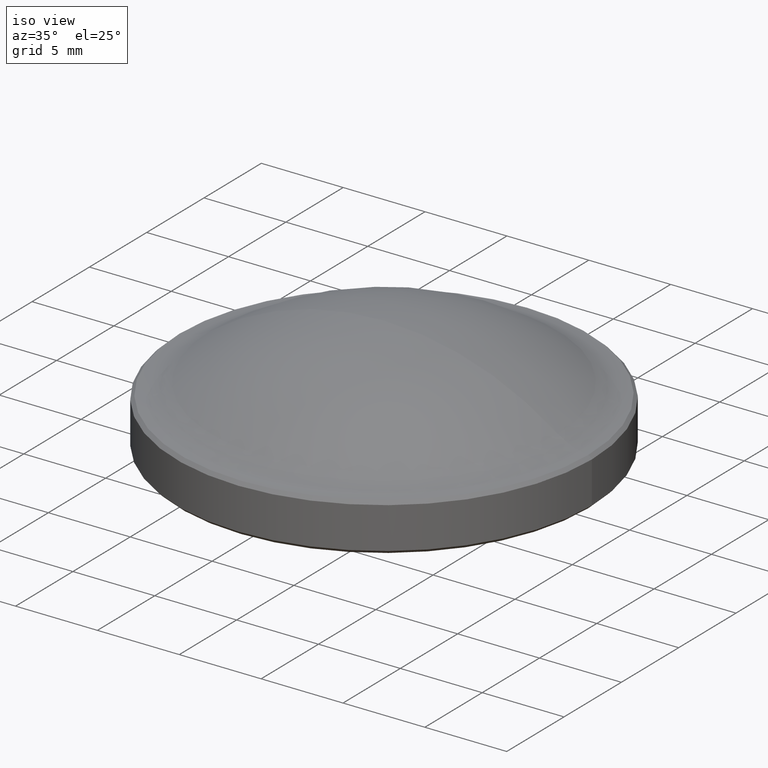
[diagram: clean part render]
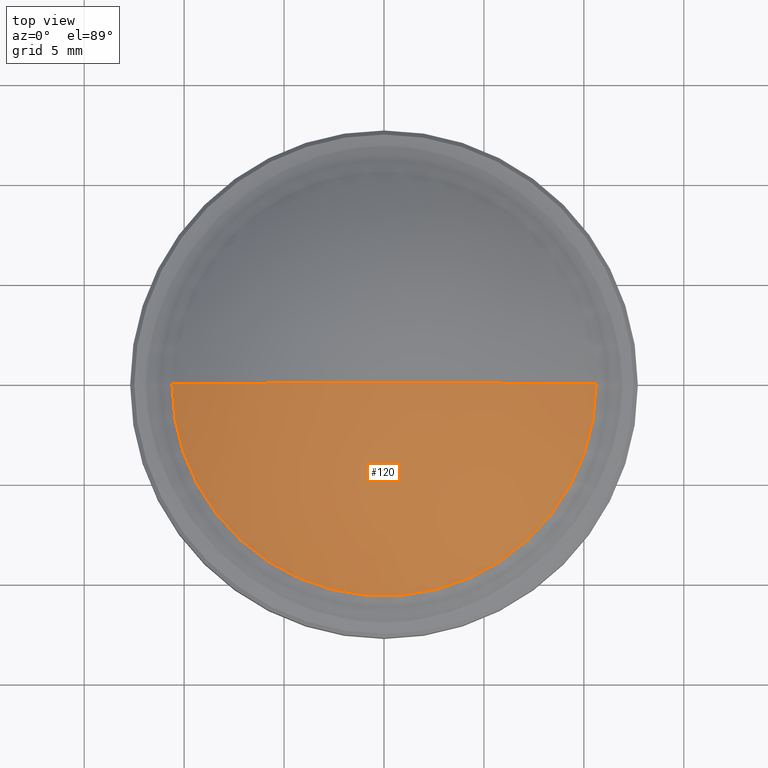
[diagram: tour spotlight — one face highlighted and labeled with its STEP entity id]
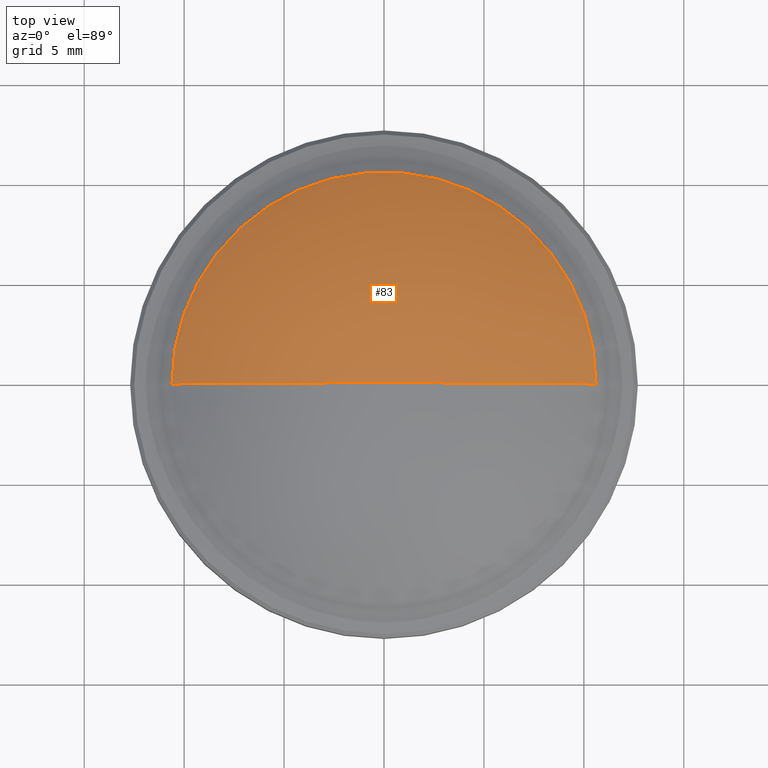
[diagram: tour spotlight — one face highlighted and labeled with its STEP entity id]
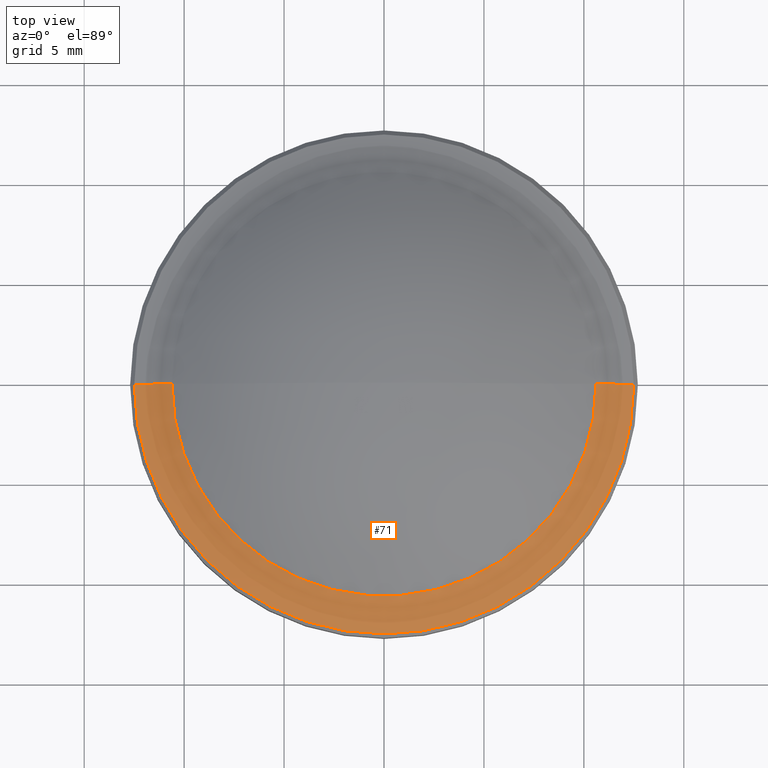
[diagram: tour spotlight — one face highlighted and labeled with its STEP entity id]
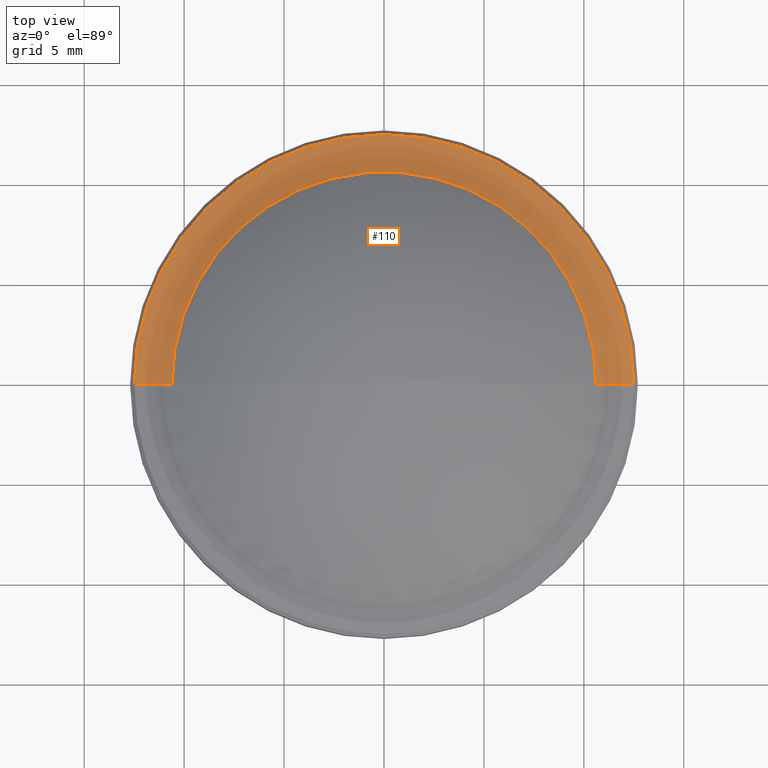
[diagram: tour spotlight — one face highlighted and labeled with its STEP entity id]
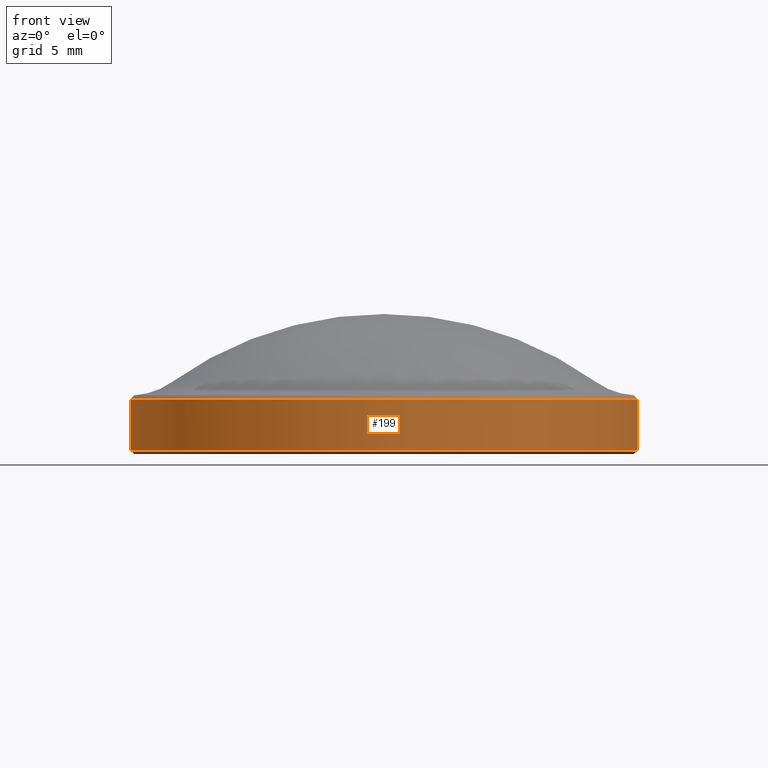
[diagram: tour spotlight — one face highlighted and labeled with its STEP entity id]
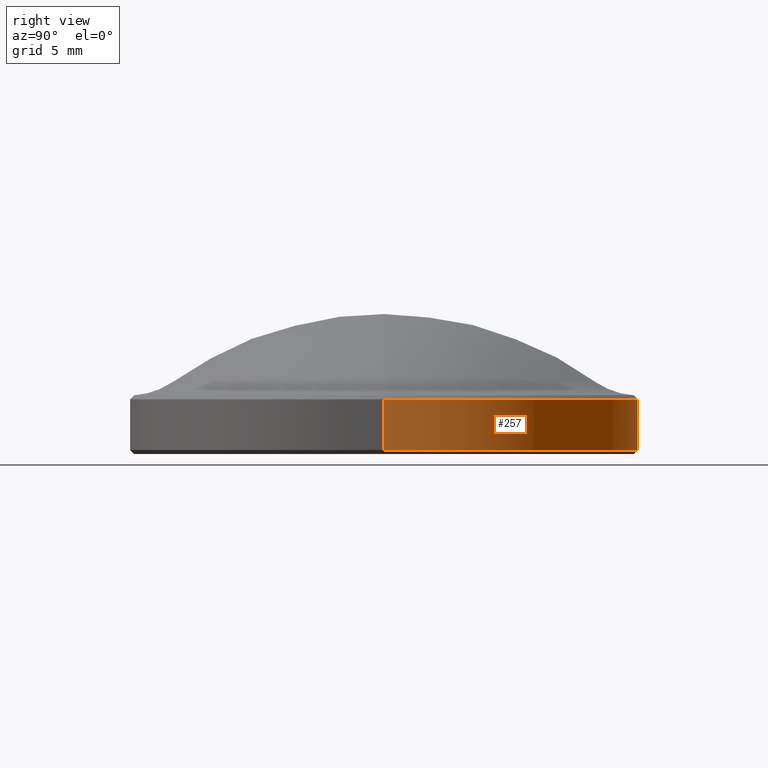
[diagram: tour spotlight — one face highlighted and labeled with its STEP entity id]
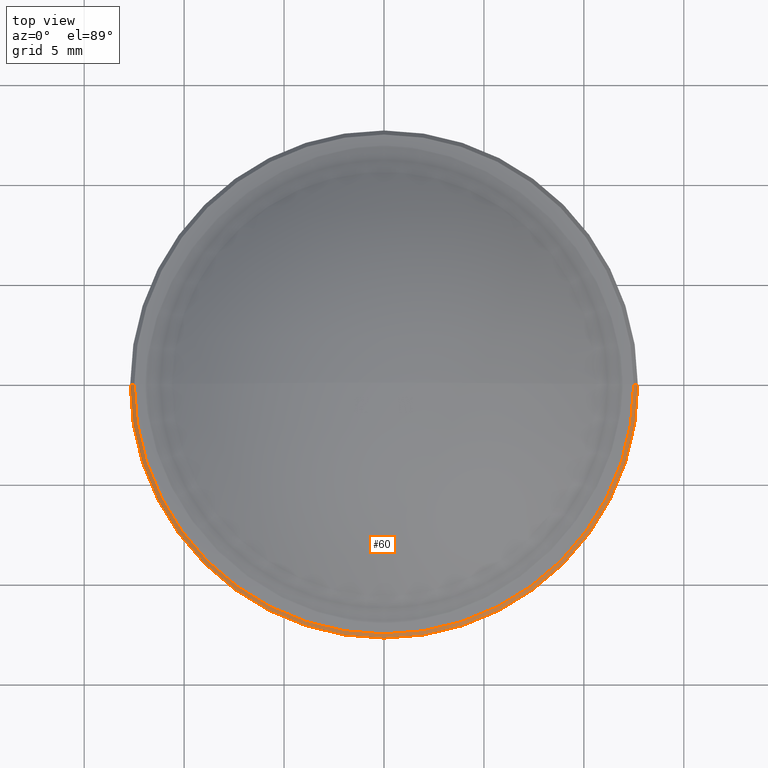
[diagram: tour spotlight — one face highlighted and labeled with its STEP entity id]
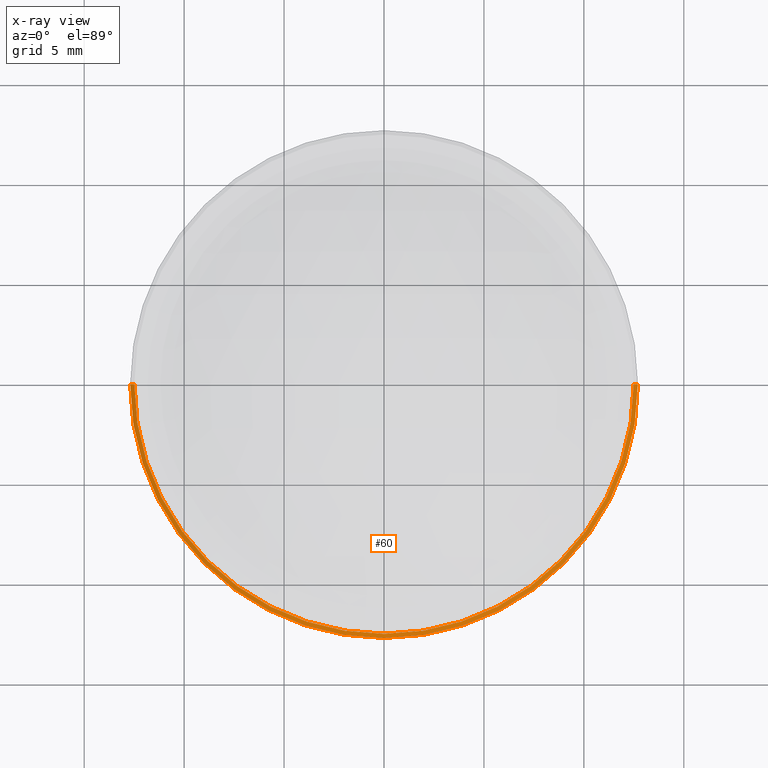
[diagram: x-ray of the same camera — body ghosted, this tour face saturated]
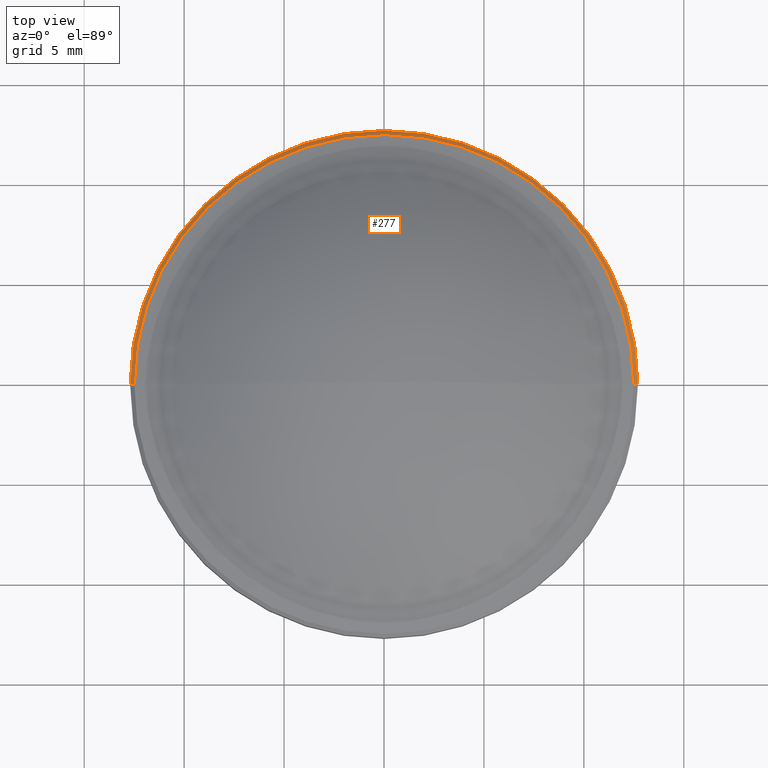
[diagram: tour spotlight — one face highlighted and labeled with its STEP entity id]
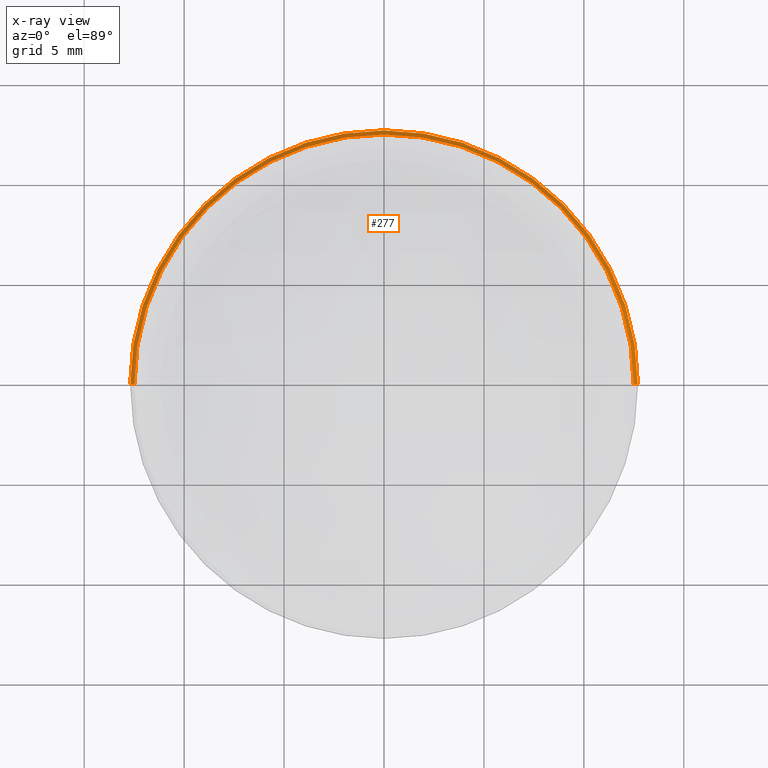
[diagram: x-ray of the same camera — body ghosted, this tour face saturated]
A machine part: a face-by-face anatomy tour. The part has 11 B-rep faces; the first image is the clean iso view, then the 8 largest visible faces are spotlighted one at a time (largest first), each with its STEP entity span.

Face 1 — top view, entity #120. In plain terms, the highlighted spherical surface has radius 18.252 mm.
Definition (entity closure, byte-faithful):
#15 = CARTESIAN_POINT ( 'NONE',  ( 0.000000000000000000, 0.000000000000000000, -11.25199999999999889 ) ) ;
#19 = VERTEX_POINT ( 'NONE', #275 ) ;
#21 = CARTESIAN_POINT ( 'NONE',  ( 8.206617439655612360E-17, 0.000000000000000000, 3.600121168435616248 ) ) ;
#24 = DIRECTION ( 'NONE',  ( 0.000000000000000000, 0.000000000000000000, -1.000000000000000000 ) ) ;
#36 = AXIS2_PLACEMENT_3D ( 'NONE', #259, #170, #212 ) ;
#40 = FACE_OUTER_BOUND ( 'NONE', #217, .T. ) ;
#58 = CIRCLE ( 'NONE', #245, 18.25199999999999889 ) ;
#87 = ORIENTED_EDGE ( 'NONE', *, *, #310, .F. ) ;
#94 = SPHERICAL_SURFACE ( 'NONE', #36, 18.25199999999999889 ) ;
#96 = DIRECTION ( 'NONE',  ( -1.000000000000000000, -1.224646799147353207E-16, 0.000000000000000000 ) ) ;
#106 = AXIS2_PLACEMENT_3D ( 'NONE', #21, #202, #180 ) ;
#120 = ADVANCED_FACE ( 'NONE', ( #40 ), #94, .T. ) ;
#170 = DIRECTION ( 'NONE',  ( 0.000000000000000000, 1.000000000000000000, -0.000000000000000000 ) ) ;
#175 = EDGE_CURVE ( 'NONE', #19, #178, #228, .T. ) ;
#178 = VERTEX_POINT ( 'NONE', #194 ) ;
#180 = DIRECTION ( 'NONE',  ( -1.000000000000000000, 0.000000000000000000, 1.226362234330445841E-16 ) ) ;
#184 = AXIS2_PLACEMENT_3D ( 'NONE', #15, #191, #96 ) ;
#189 = ORIENTED_EDGE ( 'NONE', *, *, #249, .T. ) ;
#191 = DIRECTION ( 'NONE',  ( -1.224646799147353207E-16, 1.000000000000000000, 1.499759782661857608E-32 ) ) ;
#194 = CARTESIAN_POINT ( 'NONE',  ( 10.60895851618369967, 1.414654521538122764E-15, 3.600121168435614916 ) ) ;
#202 = DIRECTION ( 'NONE',  ( -1.224646799147353207E-16, -0.000000000000000000, -1.000000000000000000 ) ) ;
#212 = DIRECTION ( 'NONE',  ( -1.000000000000000000, 0.000000000000000000, 9.504292548634709852E-17 ) ) ;
#215 = DIRECTION ( 'NONE',  ( 0.000000000000000000, -1.000000000000000000, 0.000000000000000000 ) ) ;
#217 = EDGE_LOOP ( 'NONE', ( #243, #189, #87 ) ) ;
#228 = CIRCLE ( 'NONE', #184, 18.25199999999999889 ) ;
#233 = CIRCLE ( 'NONE', #106, 10.60895851618369967 ) ;
#243 = ORIENTED_EDGE ( 'NONE', *, *, #175, .F. ) ;
#245 = AXIS2_PLACEMENT_3D ( 'NONE', #263, #215, #24 ) ;
#249 = EDGE_CURVE ( 'NONE', #19, #251, #58, .T. ) ;
#251 = VERTEX_POINT ( 'NONE', #318 ) ;
#259 = CARTESIAN_POINT ( 'NONE',  ( 0.000000000000000000, 0.000000000000000000, -11.25199999999999889 ) ) ;
#263 = CARTESIAN_POINT ( 'NONE',  ( 0.000000000000000000, 0.000000000000000000, -11.25199999999999889 ) ) ;
#275 = CARTESIAN_POINT ( 'NONE',  ( 1.117612668901874404E-15, 0.000000000000000000, 6.999999999999999112 ) ) ;
#310 = EDGE_CURVE ( 'NONE', #178, #251, #233, .T. ) ;
#318 = CARTESIAN_POINT ( 'NONE',  ( -10.60895851618369967, 0.000000000000000000, 3.600121168435617580 ) ) ;

Face 2 — top view, entity #83. In plain terms, the highlighted spherical surface has radius 18.252 mm.
Definition (entity closure, byte-faithful):
#15 = CARTESIAN_POINT ( 'NONE',  ( 0.000000000000000000, 0.000000000000000000, -11.25199999999999889 ) ) ;
#19 = VERTEX_POINT ( 'NONE', #275 ) ;
#23 = DIRECTION ( 'NONE',  ( -1.224646799147353207E-16, -0.000000000000000000, -1.000000000000000000 ) ) ;
#24 = DIRECTION ( 'NONE',  ( 0.000000000000000000, 0.000000000000000000, -1.000000000000000000 ) ) ;
#42 = SPHERICAL_SURFACE ( 'NONE', #85, 18.25199999999999889 ) ;
#44 = DIRECTION ( 'NONE',  ( -1.000000000000000000, 0.000000000000000000, 9.504292548634709852E-17 ) ) ;
#58 = CIRCLE ( 'NONE', #245, 18.25199999999999889 ) ;
#67 = CARTESIAN_POINT ( 'NONE',  ( 0.000000000000000000, 0.000000000000000000, -11.25199999999999889 ) ) ;
#78 = DIRECTION ( 'NONE',  ( -1.000000000000000000, 0.000000000000000000, 1.226362234330445841E-16 ) ) ;
#83 = ADVANCED_FACE ( 'NONE', ( #125 ), #42, .T. ) ;
#85 = AXIS2_PLACEMENT_3D ( 'NONE', #67, #151, #44 ) ;
#96 = DIRECTION ( 'NONE',  ( -1.000000000000000000, -1.224646799147353207E-16, 0.000000000000000000 ) ) ;
#117 = AXIS2_PLACEMENT_3D ( 'NONE', #155, #23, #78 ) ;
#125 = FACE_OUTER_BOUND ( 'NONE', #309, .T. ) ;
#145 = ORIENTED_EDGE ( 'NONE', *, *, #268, .F. ) ;
#151 = DIRECTION ( 'NONE',  ( 0.000000000000000000, 1.000000000000000000, -0.000000000000000000 ) ) ;
#155 = CARTESIAN_POINT ( 'NONE',  ( 8.206617439655612360E-17, 0.000000000000000000, 3.600121168435616248 ) ) ;
#175 = EDGE_CURVE ( 'NONE', #19, #178, #228, .T. ) ;
#178 = VERTEX_POINT ( 'NONE', #194 ) ;
#181 = ORIENTED_EDGE ( 'NONE', *, *, #249, .F. ) ;
#184 = AXIS2_PLACEMENT_3D ( 'NONE', #15, #191, #96 ) ;
#191 = DIRECTION ( 'NONE',  ( -1.224646799147353207E-16, 1.000000000000000000, 1.499759782661857608E-32 ) ) ;
#194 = CARTESIAN_POINT ( 'NONE',  ( 10.60895851618369967, 1.414654521538122764E-15, 3.600121168435614916 ) ) ;
#200 = ORIENTED_EDGE ( 'NONE', *, *, #175, .T. ) ;
#215 = DIRECTION ( 'NONE',  ( 0.000000000000000000, -1.000000000000000000, 0.000000000000000000 ) ) ;
#228 = CIRCLE ( 'NONE', #184, 18.25199999999999889 ) ;
#245 = AXIS2_PLACEMENT_3D ( 'NONE', #263, #215, #24 ) ;
#249 = EDGE_CURVE ( 'NONE', #19, #251, #58, .T. ) ;
#251 = VERTEX_POINT ( 'NONE', #318 ) ;
#263 = CARTESIAN_POINT ( 'NONE',  ( 0.000000000000000000, 0.000000000000000000, -11.25199999999999889 ) ) ;
#268 = EDGE_CURVE ( 'NONE', #251, #178, #315, .T. ) ;
#275 = CARTESIAN_POINT ( 'NONE',  ( 1.117612668901874404E-15, 0.000000000000000000, 6.999999999999999112 ) ) ;
#309 = EDGE_LOOP ( 'NONE', ( #181, #200, #145 ) ) ;
#315 = CIRCLE ( 'NONE', #117, 10.60895851618369967 ) ;
#318 = CARTESIAN_POINT ( 'NONE',  ( -10.60895851618369967, 0.000000000000000000, 3.600121168435617580 ) ) ;

Face 3 — top view, entity #71. In plain terms, the highlighted toroidal blend (fillet) surface has major radius 12.7 mm and minor (blend) radius 3.5975 mm.
Definition (entity closure, byte-faithful):
#21 = CARTESIAN_POINT ( 'NONE',  ( 8.206617439655612360E-17, 0.000000000000000000, 3.600121168435616248 ) ) ;
#27 = CIRCLE ( 'NONE', #59, 12.49410307713541712 ) ;
#29 = CARTESIAN_POINT ( 'NONE',  ( 12.69999999999999929, 1.555301434917138433E-15, 6.527496314496314511 ) ) ;
#31 = EDGE_CURVE ( 'NONE', #204, #178, #264, .T. ) ;
#38 = ORIENTED_EDGE ( 'NONE', *, *, #190, .F. ) ;
#41 = AXIS2_PLACEMENT_3D ( 'NONE', #29, #161, #299 ) ;
#59 = AXIS2_PLACEMENT_3D ( 'NONE', #302, #306, #213 ) ;
#71 = ADVANCED_FACE ( 'NONE', ( #172 ), #216, .F. ) ;
#84 = EDGE_CURVE ( 'NONE', #291, #204, #27, .T. ) ;
#86 = ORIENTED_EDGE ( 'NONE', *, *, #84, .T. ) ;
#95 = AXIS2_PLACEMENT_3D ( 'NONE', #195, #281, #235 ) ;
#106 = AXIS2_PLACEMENT_3D ( 'NONE', #21, #202, #180 ) ;
#119 = DIRECTION ( 'NONE',  ( -1.000000000000000000, 0.000000000000000000, 1.224646799147353207E-16 ) ) ;
#142 = AXIS2_PLACEMENT_3D ( 'NONE', #149, #255, #119 ) ;
#149 = CARTESIAN_POINT ( 'NONE',  ( 0.000000000000000000, 0.000000000000000000, 6.527496314496316288 ) ) ;
#161 = DIRECTION ( 'NONE',  ( -1.224646799147353207E-16, 1.000000000000000000, 1.499759782661857608E-32 ) ) ;
#164 = ORIENTED_EDGE ( 'NONE', *, *, #31, .T. ) ;
#172 = FACE_OUTER_BOUND ( 'NONE', #183, .T. ) ;
#178 = VERTEX_POINT ( 'NONE', #194 ) ;
#180 = DIRECTION ( 'NONE',  ( -1.000000000000000000, 0.000000000000000000, 1.226362234330445841E-16 ) ) ;
#183 = EDGE_LOOP ( 'NONE', ( #86, #164, #284, #38 ) ) ;
#190 = EDGE_CURVE ( 'NONE', #291, #251, #256, .T. ) ;
#194 = CARTESIAN_POINT ( 'NONE',  ( 10.60895851618369967, 1.414654521538122764E-15, 3.600121168435614916 ) ) ;
#195 = CARTESIAN_POINT ( 'NONE',  ( -12.69999999999999929, 0.000000000000000000, 6.527496314496318064 ) ) ;
#202 = DIRECTION ( 'NONE',  ( -1.224646799147353207E-16, -0.000000000000000000, -1.000000000000000000 ) ) ;
#204 = VERTEX_POINT ( 'NONE', #258 ) ;
#213 = DIRECTION ( 'NONE',  ( 1.000000000000000000, 0.000000000000000000, -1.388433779733579211E-16 ) ) ;
#216 = TOROIDAL_SURFACE ( 'NONE', #142, 12.69999999999999929, 3.597496314496318792 ) ;
#233 = CIRCLE ( 'NONE', #106, 10.60895851618369967 ) ;
#235 = DIRECTION ( 'NONE',  ( 0.000000000000000000, 0.000000000000000000, -1.000000000000000000 ) ) ;
#244 = CARTESIAN_POINT ( 'NONE',  ( -12.49410307714051882, 0.000000000000000000, 2.935896922863991954 ) ) ;
#251 = VERTEX_POINT ( 'NONE', #318 ) ;
#255 = DIRECTION ( 'NONE',  ( -1.224646799147353207E-16, -0.000000000000000000, -1.000000000000000000 ) ) ;
#256 = CIRCLE ( 'NONE', #95, 3.597496314496318792 ) ;
#258 = CARTESIAN_POINT ( 'NONE',  ( 12.49410307714051882, 1.530086334163723081E-15, 2.935896922863988845 ) ) ;
#264 = CIRCLE ( 'NONE', #41, 3.597496314496318348 ) ;
#281 = DIRECTION ( 'NONE',  ( 0.000000000000000000, -1.000000000000000000, 0.000000000000000000 ) ) ;
#284 = ORIENTED_EDGE ( 'NONE', *, *, #310, .T. ) ;
#291 = VERTEX_POINT ( 'NONE', #244 ) ;
#299 = DIRECTION ( 'NONE',  ( -1.000000000000000000, -1.224646799147353700E-16, 0.000000000000000000 ) ) ;
#302 = CARTESIAN_POINT ( 'NONE',  ( -4.398440698782108916E-16, 0.000000000000000000, 2.935896922863990177 ) ) ;
#306 = DIRECTION ( 'NONE',  ( 1.224646799147353207E-16, -0.000000000000000000, 1.000000000000000000 ) ) ;
#310 = EDGE_CURVE ( 'NONE', #178, #251, #233, .T. ) ;
#318 = CARTESIAN_POINT ( 'NONE',  ( -10.60895851618369967, 0.000000000000000000, 3.600121168435617580 ) ) ;

Face 4 — top view, entity #110. In plain terms, the highlighted toroidal blend (fillet) surface has major radius 12.7 mm and minor (blend) radius 3.5975 mm.
Definition (entity closure, byte-faithful):
#7 = EDGE_CURVE ( 'NONE', #204, #291, #211, .T. ) ;
#23 = DIRECTION ( 'NONE',  ( -1.224646799147353207E-16, -0.000000000000000000, -1.000000000000000000 ) ) ;
#25 = ORIENTED_EDGE ( 'NONE', *, *, #268, .T. ) ;
#29 = CARTESIAN_POINT ( 'NONE',  ( 12.69999999999999929, 1.555301434917138433E-15, 6.527496314496314511 ) ) ;
#31 = EDGE_CURVE ( 'NONE', #204, #178, #264, .T. ) ;
#35 = DIRECTION ( 'NONE',  ( 1.000000000000000000, 0.000000000000000000, -1.388433779733579211E-16 ) ) ;
#41 = AXIS2_PLACEMENT_3D ( 'NONE', #29, #161, #299 ) ;
#50 = ORIENTED_EDGE ( 'NONE', *, *, #190, .T. ) ;
#69 = DIRECTION ( 'NONE',  ( -1.224646799147353207E-16, -0.000000000000000000, -1.000000000000000000 ) ) ;
#78 = DIRECTION ( 'NONE',  ( -1.000000000000000000, 0.000000000000000000, 1.226362234330445841E-16 ) ) ;
#95 = AXIS2_PLACEMENT_3D ( 'NONE', #195, #281, #235 ) ;
#110 = ADVANCED_FACE ( 'NONE', ( #303 ), #192, .F. ) ;
#117 = AXIS2_PLACEMENT_3D ( 'NONE', #155, #23, #78 ) ;
#130 = ORIENTED_EDGE ( 'NONE', *, *, #7, .T. ) ;
#155 = CARTESIAN_POINT ( 'NONE',  ( 8.206617439655612360E-17, 0.000000000000000000, 3.600121168435616248 ) ) ;
#161 = DIRECTION ( 'NONE',  ( -1.224646799147353207E-16, 1.000000000000000000, 1.499759782661857608E-32 ) ) ;
#171 = DIRECTION ( 'NONE',  ( -1.000000000000000000, 0.000000000000000000, 1.224646799147353207E-16 ) ) ;
#178 = VERTEX_POINT ( 'NONE', #194 ) ;
#185 = CARTESIAN_POINT ( 'NONE',  ( -4.398440698782108916E-16, 0.000000000000000000, 2.935896922863990177 ) ) ;
#190 = EDGE_CURVE ( 'NONE', #291, #251, #256, .T. ) ;
#192 = TOROIDAL_SURFACE ( 'NONE', #252, 12.69999999999999929, 3.597496314496318792 ) ;
#194 = CARTESIAN_POINT ( 'NONE',  ( 10.60895851618369967, 1.414654521538122764E-15, 3.600121168435614916 ) ) ;
#195 = CARTESIAN_POINT ( 'NONE',  ( -12.69999999999999929, 0.000000000000000000, 6.527496314496318064 ) ) ;
#204 = VERTEX_POINT ( 'NONE', #258 ) ;
#211 = CIRCLE ( 'NONE', #288, 12.49410307713541712 ) ;
#222 = ORIENTED_EDGE ( 'NONE', *, *, #31, .F. ) ;
#235 = DIRECTION ( 'NONE',  ( 0.000000000000000000, 0.000000000000000000, -1.000000000000000000 ) ) ;
#244 = CARTESIAN_POINT ( 'NONE',  ( -12.49410307714051882, 0.000000000000000000, 2.935896922863991954 ) ) ;
#246 = EDGE_LOOP ( 'NONE', ( #222, #130, #50, #25 ) ) ;
#251 = VERTEX_POINT ( 'NONE', #318 ) ;
#252 = AXIS2_PLACEMENT_3D ( 'NONE', #280, #69, #171 ) ;
#256 = CIRCLE ( 'NONE', #95, 3.597496314496318792 ) ;
#258 = CARTESIAN_POINT ( 'NONE',  ( 12.49410307714051882, 1.530086334163723081E-15, 2.935896922863988845 ) ) ;
#264 = CIRCLE ( 'NONE', #41, 3.597496314496318348 ) ;
#268 = EDGE_CURVE ( 'NONE', #251, #178, #315, .T. ) ;
#272 = DIRECTION ( 'NONE',  ( 1.224646799147353207E-16, -0.000000000000000000, 1.000000000000000000 ) ) ;
#280 = CARTESIAN_POINT ( 'NONE',  ( 0.000000000000000000, 0.000000000000000000, 6.527496314496316288 ) ) ;
#281 = DIRECTION ( 'NONE',  ( 0.000000000000000000, -1.000000000000000000, 0.000000000000000000 ) ) ;
#288 = AXIS2_PLACEMENT_3D ( 'NONE', #185, #272, #35 ) ;
#291 = VERTEX_POINT ( 'NONE', #244 ) ;
#299 = DIRECTION ( 'NONE',  ( -1.000000000000000000, -1.224646799147353700E-16, 0.000000000000000000 ) ) ;
#303 = FACE_OUTER_BOUND ( 'NONE', #246, .T. ) ;
#315 = CIRCLE ( 'NONE', #117, 10.60895851618369967 ) ;
#318 = CARTESIAN_POINT ( 'NONE',  ( -10.60895851618369967, 0.000000000000000000, 3.600121168435617580 ) ) ;

Face 5 — front view, entity #199. In plain terms, the highlighted cylindrical surface (partial cylindrical patch) has radius 12.7 mm, axis along (-0, -0, -1).
Definition (entity closure, byte-faithful):
#10 = DIRECTION ( 'NONE',  ( -1.000000000000000000, 0.000000000000000000, 0.000000000000000000 ) ) ;
#18 = EDGE_CURVE ( 'NONE', #314, #254, #304, .T. ) ;
#20 = VECTOR ( 'NONE', #279, 1000.000000000000000 ) ;
#43 = CARTESIAN_POINT ( 'NONE',  ( 0.000000000000000000, 0.000000000000000000, 2.730000000000021299 ) ) ;
#75 = CARTESIAN_POINT ( 'NONE',  ( 12.69999999999999929, 1.555301434917138038E-15, 0.2000000000000196065 ) ) ;
#76 = ORIENTED_EDGE ( 'NONE', *, *, #165, .F. ) ;
#79 = EDGE_LOOP ( 'NONE', ( #76, #108, #273, #159 ) ) ;
#81 = VERTEX_POINT ( 'NONE', #261 ) ;
#97 = DIRECTION ( 'NONE',  ( 1.000000000000000000, 0.000000000000000000, -1.365923996832131609E-16 ) ) ;
#108 = ORIENTED_EDGE ( 'NONE', *, *, #147, .T. ) ;
#112 = AXIS2_PLACEMENT_3D ( 'NONE', #214, #278, #10 ) ;
#118 = CIRCLE ( 'NONE', #179, 12.69999999999999929 ) ;
#123 = CARTESIAN_POINT ( 'NONE',  ( 12.69999999999999929, 1.555301434917138038E-15, 2.930000000000000160 ) ) ;
#126 = CYLINDRICAL_SURFACE ( 'NONE', #112, 12.69999999999999929 ) ;
#135 = AXIS2_PLACEMENT_3D ( 'NONE', #187, #229, #232 ) ;
#147 = EDGE_CURVE ( 'NONE', #81, #186, #118, .T. ) ;
#150 = LINE ( 'NONE', #236, #20 ) ;
#154 = FACE_OUTER_BOUND ( 'NONE', #79, .T. ) ;
#159 = ORIENTED_EDGE ( 'NONE', *, *, #18, .T. ) ;
#165 = EDGE_CURVE ( 'NONE', #81, #254, #305, .T. ) ;
#166 = DIRECTION ( 'NONE',  ( -0.000000000000000000, -0.000000000000000000, -1.000000000000000000 ) ) ;
#179 = AXIS2_PLACEMENT_3D ( 'NONE', #43, #210, #97 ) ;
#186 = VERTEX_POINT ( 'NONE', #193 ) ;
#187 = CARTESIAN_POINT ( 'NONE',  ( 0.000000000000000000, 0.000000000000000000, 0.2000000000000196065 ) ) ;
#193 = CARTESIAN_POINT ( 'NONE',  ( -12.69999999999999929, 0.000000000000000000, 2.730000000000023075 ) ) ;
#199 = ADVANCED_FACE ( 'NONE', ( #154 ), #126, .T. ) ;
#206 = EDGE_CURVE ( 'NONE', #186, #314, #150, .T. ) ;
#210 = DIRECTION ( 'NONE',  ( -1.224646799147353207E-16, 0.000000000000000000, -1.000000000000000000 ) ) ;
#214 = CARTESIAN_POINT ( 'NONE',  ( 0.000000000000000000, 0.000000000000000000, 2.930000000000000160 ) ) ;
#229 = DIRECTION ( 'NONE',  ( -0.000000000000000000, -0.000000000000000000, 1.000000000000000000 ) ) ;
#232 = DIRECTION ( 'NONE',  ( 1.000000000000000000, 0.000000000000000000, 0.000000000000000000 ) ) ;
#236 = CARTESIAN_POINT ( 'NONE',  ( -12.69999999999999929, 0.000000000000000000, 2.930000000000000160 ) ) ;
#254 = VERTEX_POINT ( 'NONE', #75 ) ;
#261 = CARTESIAN_POINT ( 'NONE',  ( 12.69999999999999929, 1.555301434917138038E-15, 2.730000000000019522 ) ) ;
#273 = ORIENTED_EDGE ( 'NONE', *, *, #206, .T. ) ;
#278 = DIRECTION ( 'NONE',  ( -0.000000000000000000, -0.000000000000000000, -1.000000000000000000 ) ) ;
#279 = DIRECTION ( 'NONE',  ( -0.000000000000000000, -0.000000000000000000, -1.000000000000000000 ) ) ;
#287 = CARTESIAN_POINT ( 'NONE',  ( -12.69999999999999929, 0.000000000000000000, 0.2000000000000196065 ) ) ;
#304 = CIRCLE ( 'NONE', #135, 12.69999999999999929 ) ;
#305 = LINE ( 'NONE', #123, #307 ) ;
#307 = VECTOR ( 'NONE', #166, 1000.000000000000000 ) ;
#314 = VERTEX_POINT ( 'NONE', #287 ) ;

Face 6 — right view, entity #257. In plain terms, the highlighted cylindrical surface (partial cylindrical patch) has radius 12.7 mm, axis along (-0, -0, -1).
Definition (entity closure, byte-faithful):
#9 = CIRCLE ( 'NONE', #90, 12.69999999999999929 ) ;
#20 = VECTOR ( 'NONE', #279, 1000.000000000000000 ) ;
#28 = DIRECTION ( 'NONE',  ( -0.000000000000000000, -0.000000000000000000, 1.000000000000000000 ) ) ;
#57 = DIRECTION ( 'NONE',  ( 1.000000000000000000, 0.000000000000000000, 0.000000000000000000 ) ) ;
#66 = ORIENTED_EDGE ( 'NONE', *, *, #248, .T. ) ;
#73 = CIRCLE ( 'NONE', #247, 12.69999999999999929 ) ;
#75 = CARTESIAN_POINT ( 'NONE',  ( 12.69999999999999929, 1.555301434917138038E-15, 0.2000000000000196065 ) ) ;
#81 = VERTEX_POINT ( 'NONE', #261 ) ;
#82 = ORIENTED_EDGE ( 'NONE', *, *, #146, .T. ) ;
#90 = AXIS2_PLACEMENT_3D ( 'NONE', #107, #28, #57 ) ;
#98 = CARTESIAN_POINT ( 'NONE',  ( 0.000000000000000000, 0.000000000000000000, 2.730000000000021299 ) ) ;
#105 = ORIENTED_EDGE ( 'NONE', *, *, #206, .F. ) ;
#107 = CARTESIAN_POINT ( 'NONE',  ( 0.000000000000000000, 0.000000000000000000, 0.2000000000000196065 ) ) ;
#123 = CARTESIAN_POINT ( 'NONE',  ( 12.69999999999999929, 1.555301434917138038E-15, 2.930000000000000160 ) ) ;
#131 = FACE_OUTER_BOUND ( 'NONE', #289, .T. ) ;
#146 = EDGE_CURVE ( 'NONE', #186, #81, #73, .T. ) ;
#150 = LINE ( 'NONE', #236, #20 ) ;
#165 = EDGE_CURVE ( 'NONE', #81, #254, #305, .T. ) ;
#166 = DIRECTION ( 'NONE',  ( -0.000000000000000000, -0.000000000000000000, -1.000000000000000000 ) ) ;
#168 = DIRECTION ( 'NONE',  ( -1.224646799147353207E-16, 0.000000000000000000, -1.000000000000000000 ) ) ;
#177 = DIRECTION ( 'NONE',  ( -0.000000000000000000, -0.000000000000000000, -1.000000000000000000 ) ) ;
#186 = VERTEX_POINT ( 'NONE', #193 ) ;
#193 = CARTESIAN_POINT ( 'NONE',  ( -12.69999999999999929, 0.000000000000000000, 2.730000000000023075 ) ) ;
#196 = DIRECTION ( 'NONE',  ( 1.000000000000000000, 0.000000000000000000, -1.365923996832131609E-16 ) ) ;
#206 = EDGE_CURVE ( 'NONE', #186, #314, #150, .T. ) ;
#236 = CARTESIAN_POINT ( 'NONE',  ( -12.69999999999999929, 0.000000000000000000, 2.930000000000000160 ) ) ;
#237 = AXIS2_PLACEMENT_3D ( 'NONE', #313, #177, #266 ) ;
#247 = AXIS2_PLACEMENT_3D ( 'NONE', #98, #168, #196 ) ;
#248 = EDGE_CURVE ( 'NONE', #254, #314, #9, .T. ) ;
#254 = VERTEX_POINT ( 'NONE', #75 ) ;
#257 = ADVANCED_FACE ( 'NONE', ( #131 ), #290, .T. ) ;
#261 = CARTESIAN_POINT ( 'NONE',  ( 12.69999999999999929, 1.555301434917138038E-15, 2.730000000000019522 ) ) ;
#266 = DIRECTION ( 'NONE',  ( -1.000000000000000000, 0.000000000000000000, 0.000000000000000000 ) ) ;
#279 = DIRECTION ( 'NONE',  ( -0.000000000000000000, -0.000000000000000000, -1.000000000000000000 ) ) ;
#287 = CARTESIAN_POINT ( 'NONE',  ( -12.69999999999999929, 0.000000000000000000, 0.2000000000000196065 ) ) ;
#289 = EDGE_LOOP ( 'NONE', ( #82, #317, #66, #105 ) ) ;
#290 = CYLINDRICAL_SURFACE ( 'NONE', #237, 12.69999999999999929 ) ;
#305 = LINE ( 'NONE', #123, #307 ) ;
#307 = VECTOR ( 'NONE', #166, 1000.000000000000000 ) ;
#313 = CARTESIAN_POINT ( 'NONE',  ( 0.000000000000000000, 0.000000000000000000, 2.930000000000000160 ) ) ;
#314 = VERTEX_POINT ( 'NONE', #287 ) ;
#317 = ORIENTED_EDGE ( 'NONE', *, *, #165, .T. ) ;

Face 7 — top view, entity #60. An x-ray twin of the same camera follows (body ghosted, this face saturated) — the face is partly hidden behind the body. In plain terms, the highlighted conical surface has half-angle 45 deg.
Definition (entity closure, byte-faithful):
#2 = DIRECTION ( 'NONE',  ( -1.000000000000000000, 0.000000000000000000, 1.388433779733575513E-16 ) ) ;
#6 = FACE_OUTER_BOUND ( 'NONE', #128, .T. ) ;
#27 = CIRCLE ( 'NONE', #59, 12.49410307713541712 ) ;
#43 = CARTESIAN_POINT ( 'NONE',  ( 0.000000000000000000, 0.000000000000000000, 2.730000000000021299 ) ) ;
#51 = AXIS2_PLACEMENT_3D ( 'NONE', #115, #91, #2 ) ;
#52 = LINE ( 'NONE', #223, #72 ) ;
#59 = AXIS2_PLACEMENT_3D ( 'NONE', #302, #306, #213 ) ;
#60 = ADVANCED_FACE ( 'NONE', ( #6 ), #197, .T. ) ;
#61 = EDGE_CURVE ( 'NONE', #291, #186, #111, .T. ) ;
#64 = ORIENTED_EDGE ( 'NONE', *, *, #61, .T. ) ;
#72 = VECTOR ( 'NONE', #80, 1000.000000000000000 ) ;
#80 = DIRECTION ( 'NONE',  ( 0.7071067811865436870, 8.659560562354887252E-17, -0.7071067811865513475 ) ) ;
#81 = VERTEX_POINT ( 'NONE', #261 ) ;
#84 = EDGE_CURVE ( 'NONE', #291, #204, #27, .T. ) ;
#91 = DIRECTION ( 'NONE',  ( -1.224646799147353207E-16, 0.000000000000000000, -1.000000000000000000 ) ) ;
#97 = DIRECTION ( 'NONE',  ( 1.000000000000000000, 0.000000000000000000, -1.365923996832131609E-16 ) ) ;
#111 = LINE ( 'NONE', #205, #173 ) ;
#115 = CARTESIAN_POINT ( 'NONE',  ( -4.398440698781394997E-16, 0.000000000000000000, 2.935896922864572822 ) ) ;
#118 = CIRCLE ( 'NONE', #179, 12.69999999999999929 ) ;
#128 = EDGE_LOOP ( 'NONE', ( #269, #293, #64, #267 ) ) ;
#147 = EDGE_CURVE ( 'NONE', #81, #186, #118, .T. ) ;
#173 = VECTOR ( 'NONE', #271, 999.9999999999998863 ) ;
#179 = AXIS2_PLACEMENT_3D ( 'NONE', #43, #210, #97 ) ;
#186 = VERTEX_POINT ( 'NONE', #193 ) ;
#193 = CARTESIAN_POINT ( 'NONE',  ( -12.69999999999999929, 0.000000000000000000, 2.730000000000023075 ) ) ;
#197 = CONICAL_SURFACE ( 'NONE', #51, 12.49410307713545087, 0.7853981633974430610 ) ;
#204 = VERTEX_POINT ( 'NONE', #258 ) ;
#205 = CARTESIAN_POINT ( 'NONE',  ( -12.49410307713545087, 0.000000000000000000, 2.935896922864574599 ) ) ;
#210 = DIRECTION ( 'NONE',  ( -1.224646799147353207E-16, 0.000000000000000000, -1.000000000000000000 ) ) ;
#213 = DIRECTION ( 'NONE',  ( 1.000000000000000000, 0.000000000000000000, -1.388433779733579211E-16 ) ) ;
#223 = CARTESIAN_POINT ( 'NONE',  ( 12.49410307713545087, 1.530086334163102642E-15, 2.935896922864571046 ) ) ;
#244 = CARTESIAN_POINT ( 'NONE',  ( -12.49410307714051882, 0.000000000000000000, 2.935896922863991954 ) ) ;
#258 = CARTESIAN_POINT ( 'NONE',  ( 12.49410307714051882, 1.530086334163723081E-15, 2.935896922863988845 ) ) ;
#261 = CARTESIAN_POINT ( 'NONE',  ( 12.69999999999999929, 1.555301434917138038E-15, 2.730000000000019522 ) ) ;
#267 = ORIENTED_EDGE ( 'NONE', *, *, #147, .F. ) ;
#269 = ORIENTED_EDGE ( 'NONE', *, *, #300, .F. ) ;
#271 = DIRECTION ( 'NONE',  ( -0.7071067811865440200, 0.000000000000000000, -0.7071067811865511255 ) ) ;
#291 = VERTEX_POINT ( 'NONE', #244 ) ;
#293 = ORIENTED_EDGE ( 'NONE', *, *, #84, .F. ) ;
#300 = EDGE_CURVE ( 'NONE', #204, #81, #52, .T. ) ;
#302 = CARTESIAN_POINT ( 'NONE',  ( -4.398440698782108916E-16, 0.000000000000000000, 2.935896922863990177 ) ) ;
#306 = DIRECTION ( 'NONE',  ( 1.224646799147353207E-16, -0.000000000000000000, 1.000000000000000000 ) ) ;

Face 8 — top view, entity #277. An x-ray twin of the same camera follows (body ghosted, this face saturated) — the face is partly hidden behind the body. In plain terms, the highlighted conical surface has half-angle 45 deg.
Definition (entity closure, byte-faithful):
#7 = EDGE_CURVE ( 'NONE', #204, #291, #211, .T. ) ;
#35 = DIRECTION ( 'NONE',  ( 1.000000000000000000, 0.000000000000000000, -1.388433779733579211E-16 ) ) ;
#52 = LINE ( 'NONE', #223, #72 ) ;
#61 = EDGE_CURVE ( 'NONE', #291, #186, #111, .T. ) ;
#65 = EDGE_LOOP ( 'NONE', ( #208, #144, #132, #220 ) ) ;
#72 = VECTOR ( 'NONE', #80, 1000.000000000000000 ) ;
#73 = CIRCLE ( 'NONE', #247, 12.69999999999999929 ) ;
#80 = DIRECTION ( 'NONE',  ( 0.7071067811865436870, 8.659560562354887252E-17, -0.7071067811865513475 ) ) ;
#81 = VERTEX_POINT ( 'NONE', #261 ) ;
#98 = CARTESIAN_POINT ( 'NONE',  ( 0.000000000000000000, 0.000000000000000000, 2.730000000000021299 ) ) ;
#99 = CONICAL_SURFACE ( 'NONE', #134, 12.49410307713545087, 0.7853981633974430610 ) ;
#104 = CARTESIAN_POINT ( 'NONE',  ( -4.398440698781394997E-16, 0.000000000000000000, 2.935896922864572822 ) ) ;
#111 = LINE ( 'NONE', #205, #173 ) ;
#132 = ORIENTED_EDGE ( 'NONE', *, *, #146, .F. ) ;
#134 = AXIS2_PLACEMENT_3D ( 'NONE', #104, #137, #201 ) ;
#137 = DIRECTION ( 'NONE',  ( -1.224646799147353207E-16, 0.000000000000000000, -1.000000000000000000 ) ) ;
#144 = ORIENTED_EDGE ( 'NONE', *, *, #300, .T. ) ;
#146 = EDGE_CURVE ( 'NONE', #186, #81, #73, .T. ) ;
#158 = FACE_OUTER_BOUND ( 'NONE', #65, .T. ) ;
#168 = DIRECTION ( 'NONE',  ( -1.224646799147353207E-16, 0.000000000000000000, -1.000000000000000000 ) ) ;
#173 = VECTOR ( 'NONE', #271, 999.9999999999998863 ) ;
#185 = CARTESIAN_POINT ( 'NONE',  ( -4.398440698782108916E-16, 0.000000000000000000, 2.935896922863990177 ) ) ;
#186 = VERTEX_POINT ( 'NONE', #193 ) ;
#193 = CARTESIAN_POINT ( 'NONE',  ( -12.69999999999999929, 0.000000000000000000, 2.730000000000023075 ) ) ;
#196 = DIRECTION ( 'NONE',  ( 1.000000000000000000, 0.000000000000000000, -1.365923996832131609E-16 ) ) ;
#201 = DIRECTION ( 'NONE',  ( -1.000000000000000000, 0.000000000000000000, 1.388433779733575513E-16 ) ) ;
#204 = VERTEX_POINT ( 'NONE', #258 ) ;
#205 = CARTESIAN_POINT ( 'NONE',  ( -12.49410307713545087, 0.000000000000000000, 2.935896922864574599 ) ) ;
#208 = ORIENTED_EDGE ( 'NONE', *, *, #7, .F. ) ;
#211 = CIRCLE ( 'NONE', #288, 12.49410307713541712 ) ;
#220 = ORIENTED_EDGE ( 'NONE', *, *, #61, .F. ) ;
#223 = CARTESIAN_POINT ( 'NONE',  ( 12.49410307713545087, 1.530086334163102642E-15, 2.935896922864571046 ) ) ;
#244 = CARTESIAN_POINT ( 'NONE',  ( -12.49410307714051882, 0.000000000000000000, 2.935896922863991954 ) ) ;
#247 = AXIS2_PLACEMENT_3D ( 'NONE', #98, #168, #196 ) ;
#258 = CARTESIAN_POINT ( 'NONE',  ( 12.49410307714051882, 1.530086334163723081E-15, 2.935896922863988845 ) ) ;
#261 = CARTESIAN_POINT ( 'NONE',  ( 12.69999999999999929, 1.555301434917138038E-15, 2.730000000000019522 ) ) ;
#271 = DIRECTION ( 'NONE',  ( -0.7071067811865440200, 0.000000000000000000, -0.7071067811865511255 ) ) ;
#272 = DIRECTION ( 'NONE',  ( 1.224646799147353207E-16, -0.000000000000000000, 1.000000000000000000 ) ) ;
#277 = ADVANCED_FACE ( 'NONE', ( #158 ), #99, .T. ) ;
#288 = AXIS2_PLACEMENT_3D ( 'NONE', #185, #272, #35 ) ;
#291 = VERTEX_POINT ( 'NONE', #244 ) ;
#300 = EDGE_CURVE ( 'NONE', #204, #81, #52, .T. ) ;